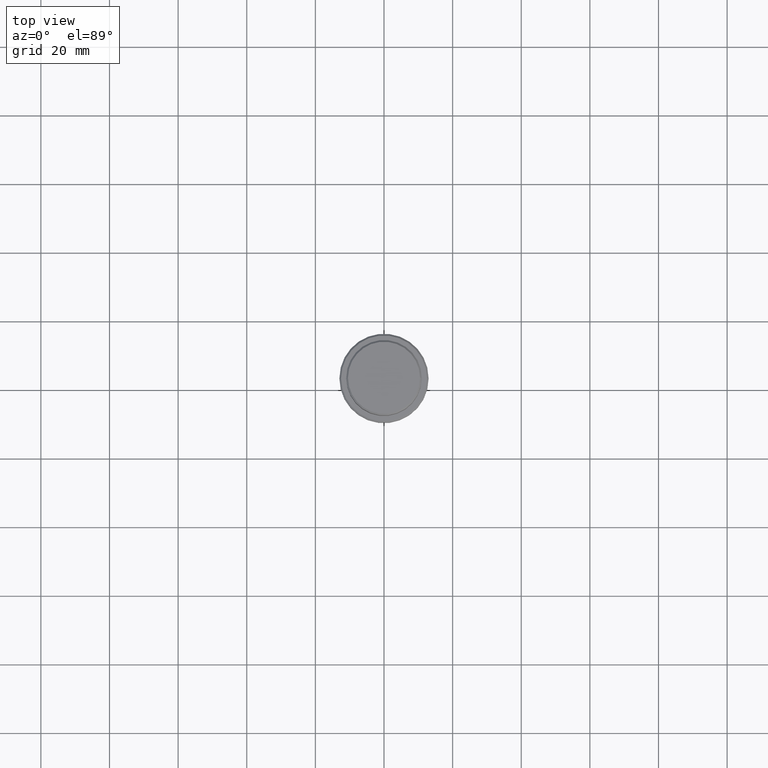
[diagram: clean part render]
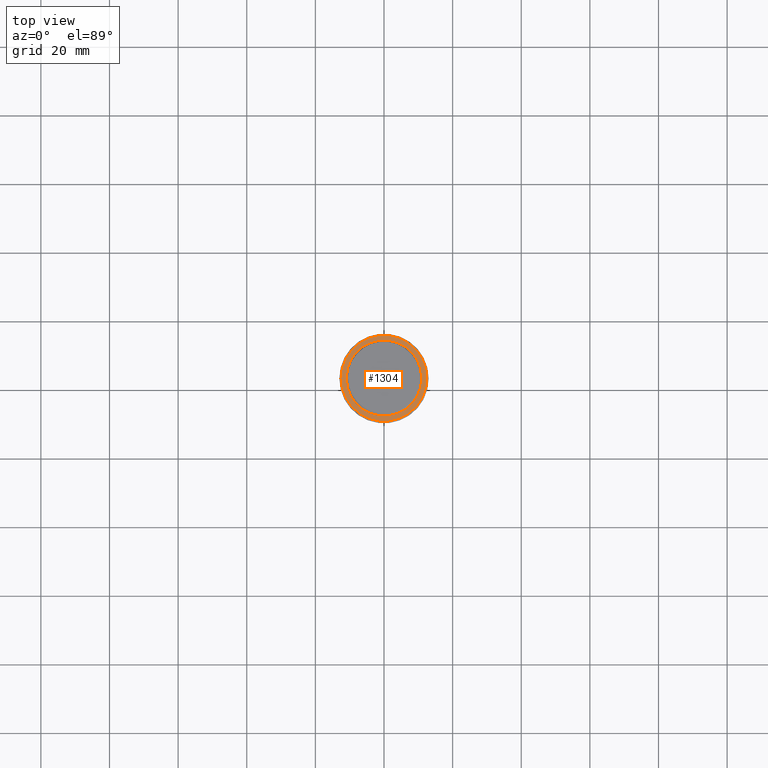
[diagram: same view with one face highlighted and labeled with its STEP entity id]
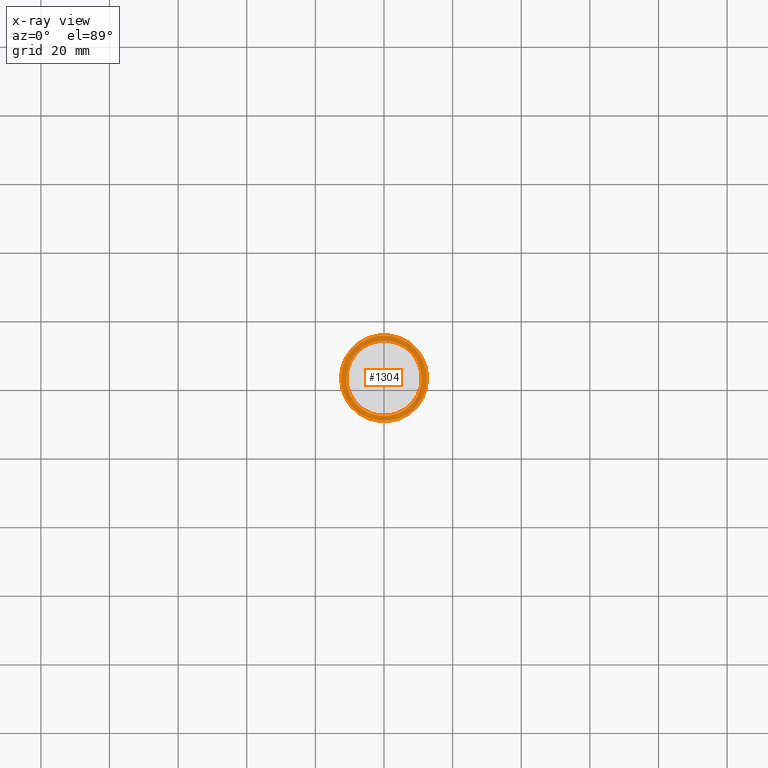
[diagram: x-ray of the same camera — body ghosted, the highlighted face saturated]
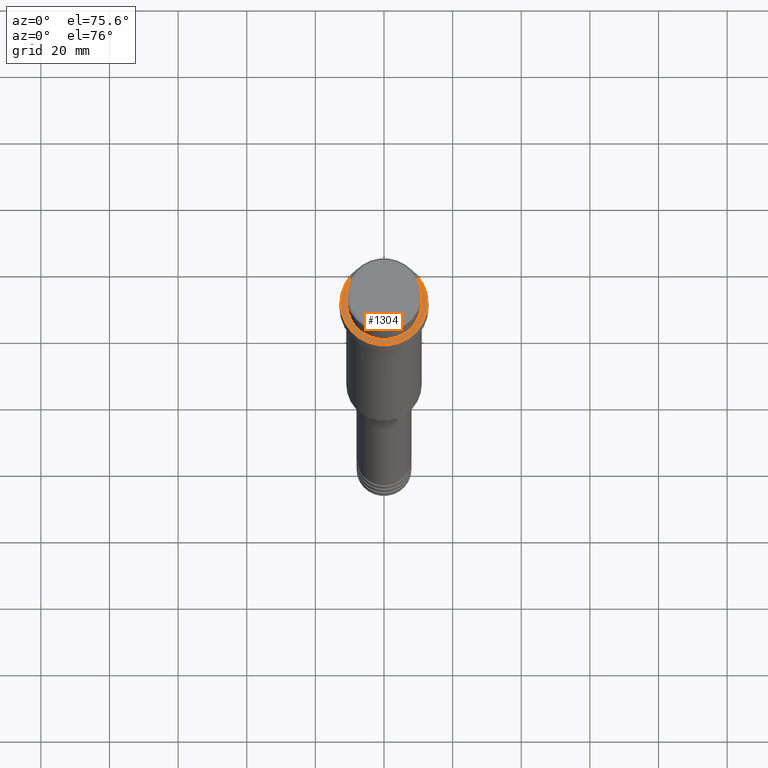
[diagram: same view with one face highlighted and labeled with its STEP entity id]
A machine part, top view. The second image highlights one B-rep face of the part: STEP entity #1304.
The next image is the same camera in x-ray: the body ghosted, the highlighted face saturated — about 0% of this face is hidden behind the body in this view.
A second angle (auxiliary view) of the same face is appended — the face is thin or edge-on in the first view.
In plain terms, the highlighted planar face has unit normal (0, -0, 1).
Its self-contained STEP definition (entity closure, byte-faithful):
#2 = DIRECTION ( 'NONE',  ( 0.000000000000000000, 0.000000000000000000, -1.000000000000000000 ) ) ;
#30 = EDGE_LOOP ( 'NONE', ( #666, #266 ) ) ;
#41 = CIRCLE ( 'NONE', #1015, 12.50000000000003908 ) ;
#61 = VERTEX_POINT ( 'NONE', #1099 ) ;
#65 = AXIS2_PLACEMENT_3D ( 'NONE', #250, #2, #431 ) ;
#66 = VERTEX_POINT ( 'NONE', #752 ) ;
#87 = DIRECTION ( 'NONE',  ( 0.000000000000000000, -0.000000000000000000, 1.000000000000000000 ) ) ;
#117 = AXIS2_PLACEMENT_3D ( 'NONE', #727, #87, #1408 ) ;
#128 = CARTESIAN_POINT ( 'NONE',  ( 10.99999999999996625, 0.000000000000000000, -10.00000000000000000 ) ) ;
#170 = EDGE_CURVE ( 'NONE', #61, #313, #897, .T. ) ;
#250 = CARTESIAN_POINT ( 'NONE',  ( 0.000000000000000000, 0.000000000000000000, -10.00000000000000000 ) ) ;
#266 = ORIENTED_EDGE ( 'NONE', *, *, #941, .T. ) ;
#267 = DIRECTION ( 'NONE',  ( 1.000000000000000000, 0.000000000000000000, 0.000000000000000000 ) ) ;
#297 = CARTESIAN_POINT ( 'NONE',  ( 0.000000000000000000, 0.000000000000000000, -10.00000000000000000 ) ) ;
#313 = VERTEX_POINT ( 'NONE', #128 ) ;
#373 = FACE_BOUND ( 'NONE', #600, .T. ) ;
#424 = PLANE ( 'NONE',  #117 ) ;
#426 = DIRECTION ( 'NONE',  ( 0.000000000000000000, 0.000000000000000000, -1.000000000000000000 ) ) ;
#431 = DIRECTION ( 'NONE',  ( 1.000000000000000000, 0.000000000000000000, 0.000000000000000000 ) ) ;
#541 = AXIS2_PLACEMENT_3D ( 'NONE', #1331, #646, #938 ) ;
#600 = EDGE_LOOP ( 'NONE', ( #1078, #1117 ) ) ;
#604 = CARTESIAN_POINT ( 'NONE',  ( 0.000000000000000000, 0.000000000000000000, -10.00000000000000000 ) ) ;
#623 = EDGE_CURVE ( 'NONE', #66, #1297, #1374, .T. ) ;
#646 = DIRECTION ( 'NONE',  ( -0.000000000000000000, -0.000000000000000000, 1.000000000000000000 ) ) ;
#666 = ORIENTED_EDGE ( 'NONE', *, *, #623, .T. ) ;
#727 = CARTESIAN_POINT ( 'NONE',  ( 0.000000000000000000, 10.49999999999996625, -10.00000000000000000 ) ) ;
#752 = CARTESIAN_POINT ( 'NONE',  ( -12.50000000000003908, 0.000000000000000000, -10.00000000000000000 ) ) ;
#837 = DIRECTION ( 'NONE',  ( 1.000000000000000000, 0.000000000000000000, 0.000000000000000000 ) ) ;
#872 = CIRCLE ( 'NONE', #1217, 10.99999999999996625 ) ;
#897 = CIRCLE ( 'NONE', #65, 10.99999999999996625 ) ;
#906 = FACE_OUTER_BOUND ( 'NONE', #30, .T. ) ;
#938 = DIRECTION ( 'NONE',  ( 1.000000000000000000, 0.000000000000000000, 0.000000000000000000 ) ) ;
#941 = EDGE_CURVE ( 'NONE', #1297, #66, #41, .T. ) ;
#1015 = AXIS2_PLACEMENT_3D ( 'NONE', #604, #1237, #267 ) ;
#1027 = EDGE_CURVE ( 'NONE', #313, #61, #872, .T. ) ;
#1078 = ORIENTED_EDGE ( 'NONE', *, *, #1027, .T. ) ;
#1099 = CARTESIAN_POINT ( 'NONE',  ( -10.99999999999996625, 1.347111479062084460E-15, -10.00000000000000000 ) ) ;
#1117 = ORIENTED_EDGE ( 'NONE', *, *, #170, .T. ) ;
#1217 = AXIS2_PLACEMENT_3D ( 'NONE', #297, #426, #837 ) ;
#1237 = DIRECTION ( 'NONE',  ( -0.000000000000000000, -0.000000000000000000, 1.000000000000000000 ) ) ;
#1297 = VERTEX_POINT ( 'NONE', #1352 ) ;
#1304 = ADVANCED_FACE ( 'NONE', ( #906, #373 ), #424, .T. ) ;
#1331 = CARTESIAN_POINT ( 'NONE',  ( 0.000000000000000000, 0.000000000000000000, -10.00000000000000000 ) ) ;
#1352 = CARTESIAN_POINT ( 'NONE',  ( 12.50000000000003908, 1.561424668912877675E-15, -10.00000000000000000 ) ) ;
#1374 = CIRCLE ( 'NONE', #541, 12.50000000000003908 ) ;
#1408 = DIRECTION ( 'NONE',  ( 1.000000000000000000, 0.000000000000000000, 0.000000000000000000 ) ) ;